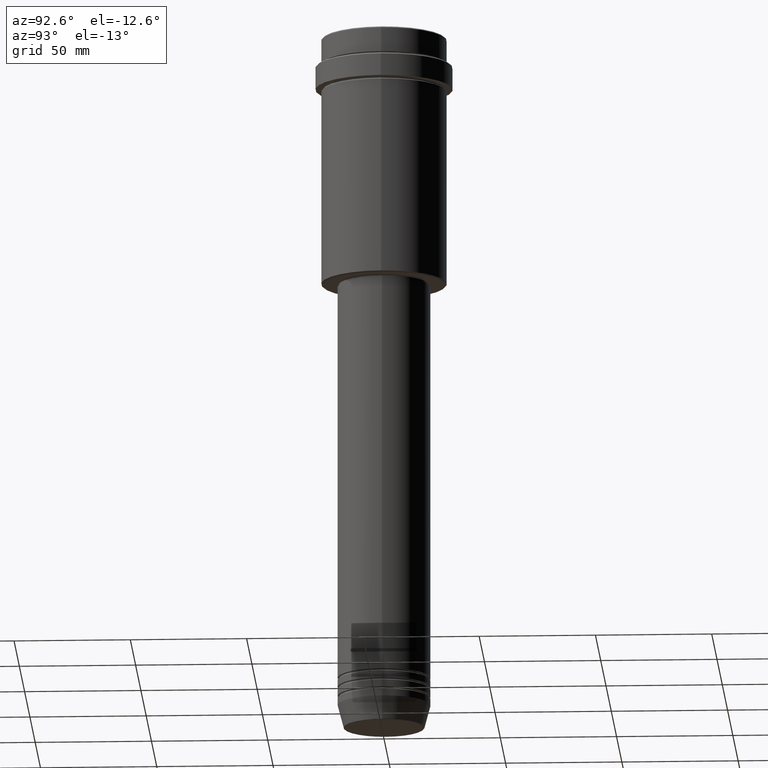
[diagram: clean part render]
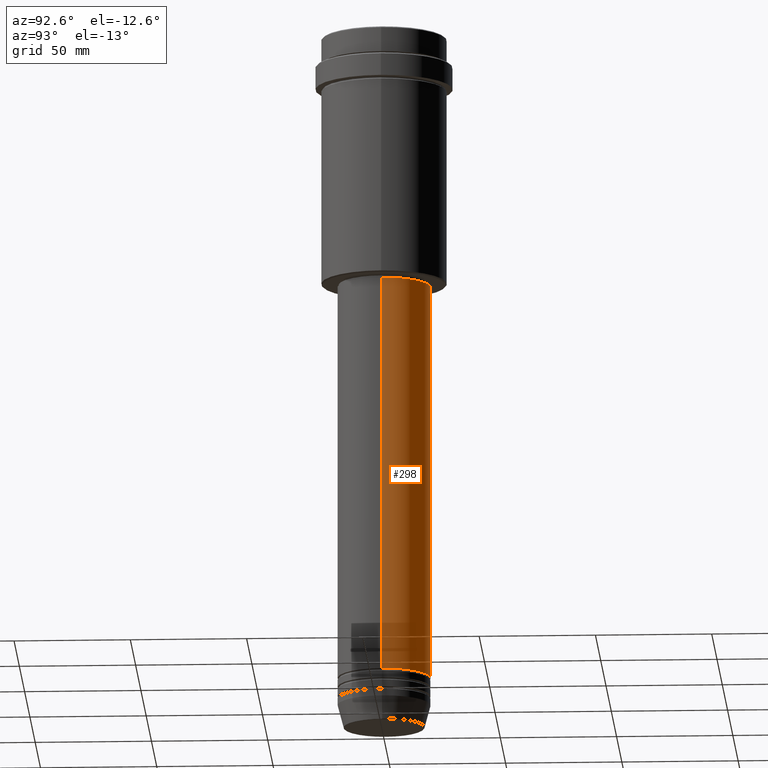
[diagram: same view with one face highlighted and labeled with its STEP entity id]
A machine part, auxiliary view. The second image highlights one B-rep face of the part: STEP entity #298.
In plain terms, the highlighted cylindrical surface (partial cylindrical patch) has radius 20 mm, axis along (-0, -0, 1).
Its self-contained STEP definition (entity closure, byte-faithful):
#35 = EDGE_CURVE ( 'NONE', #923, #878, #1383, .T. ) ;
#43 = ORIENTED_EDGE ( 'NONE', *, *, #773, .T. ) ;
#134 = CIRCLE ( 'NONE', #228, 20.00000000000000000 ) ;
#151 = DIRECTION ( 'NONE',  ( 1.000000000000000000, 0.000000000000000000, 0.000000000000000000 ) ) ;
#153 = CARTESIAN_POINT ( 'NONE',  ( 20.00000000000000000, 0.000000000000000000, 0.000000000000000000 ) ) ;
#228 = AXIS2_PLACEMENT_3D ( 'NONE', #505, #700, #488 ) ;
#256 = AXIS2_PLACEMENT_3D ( 'NONE', #1365, #991, #1289 ) ;
#263 = DIRECTION ( 'NONE',  ( -0.000000000000000000, -0.000000000000000000, 1.000000000000000000 ) ) ;
#283 = CARTESIAN_POINT ( 'NONE',  ( 20.00000000000000000, 0.000000000000000000, -108.9999999999999289 ) ) ;
#298 = ADVANCED_FACE ( 'NONE', ( #1249 ), #367, .T. ) ;
#343 = ORIENTED_EDGE ( 'NONE', *, *, #1357, .T. ) ;
#345 = CARTESIAN_POINT ( 'NONE',  ( -20.00000000000000000, 2.449293598294706513E-15, -280.9999999999999432 ) ) ;
#367 = CYLINDRICAL_SURFACE ( 'NONE', #548, 20.00000000000000000 ) ;
#435 = VERTEX_POINT ( 'NONE', #1132 ) ;
#488 = DIRECTION ( 'NONE',  ( 1.000000000000000000, 0.000000000000000000, 0.000000000000000000 ) ) ;
#494 = ORIENTED_EDGE ( 'NONE', *, *, #1380, .F. ) ;
#505 = CARTESIAN_POINT ( 'NONE',  ( 0.000000000000000000, 0.000000000000000000, -280.9999999999999432 ) ) ;
#548 = AXIS2_PLACEMENT_3D ( 'NONE', #1142, #1332, #151 ) ;
#569 = EDGE_LOOP ( 'NONE', ( #43, #343, #494, #1244 ) ) ;
#596 = DIRECTION ( 'NONE',  ( -0.000000000000000000, -0.000000000000000000, 1.000000000000000000 ) ) ;
#625 = VECTOR ( 'NONE', #263, 1000.000000000000000 ) ;
#700 = DIRECTION ( 'NONE',  ( -0.000000000000000000, -0.000000000000000000, 1.000000000000000000 ) ) ;
#773 = EDGE_CURVE ( 'NONE', #923, #1190, #134, .T. ) ;
#774 = CARTESIAN_POINT ( 'NONE',  ( 20.00000000000000000, 0.000000000000000000, -280.9999999999999432 ) ) ;
#834 = LINE ( 'NONE', #1245, #625 ) ;
#878 = VERTEX_POINT ( 'NONE', #283 ) ;
#923 = VERTEX_POINT ( 'NONE', #774 ) ;
#991 = DIRECTION ( 'NONE',  ( -0.000000000000000000, -0.000000000000000000, 1.000000000000000000 ) ) ;
#1132 = CARTESIAN_POINT ( 'NONE',  ( -20.00000000000000000, 2.449293598294706513E-15, -108.9999999999999289 ) ) ;
#1142 = CARTESIAN_POINT ( 'NONE',  ( 0.000000000000000000, 0.000000000000000000, 0.000000000000000000 ) ) ;
#1190 = VERTEX_POINT ( 'NONE', #345 ) ;
#1244 = ORIENTED_EDGE ( 'NONE', *, *, #35, .F. ) ;
#1245 = CARTESIAN_POINT ( 'NONE',  ( -20.00000000000000000, 2.449293598294706513E-15, 0.000000000000000000 ) ) ;
#1249 = FACE_OUTER_BOUND ( 'NONE', #569, .T. ) ;
#1288 = CIRCLE ( 'NONE', #256, 20.00000000000000000 ) ;
#1289 = DIRECTION ( 'NONE',  ( 1.000000000000000000, 0.000000000000000000, 0.000000000000000000 ) ) ;
#1301 = VECTOR ( 'NONE', #596, 1000.000000000000000 ) ;
#1332 = DIRECTION ( 'NONE',  ( -0.000000000000000000, -0.000000000000000000, 1.000000000000000000 ) ) ;
#1357 = EDGE_CURVE ( 'NONE', #1190, #435, #834, .T. ) ;
#1365 = CARTESIAN_POINT ( 'NONE',  ( 0.000000000000000000, 0.000000000000000000, -108.9999999999999289 ) ) ;
#1380 = EDGE_CURVE ( 'NONE', #878, #435, #1288, .T. ) ;
#1383 = LINE ( 'NONE', #153, #1301 ) ;